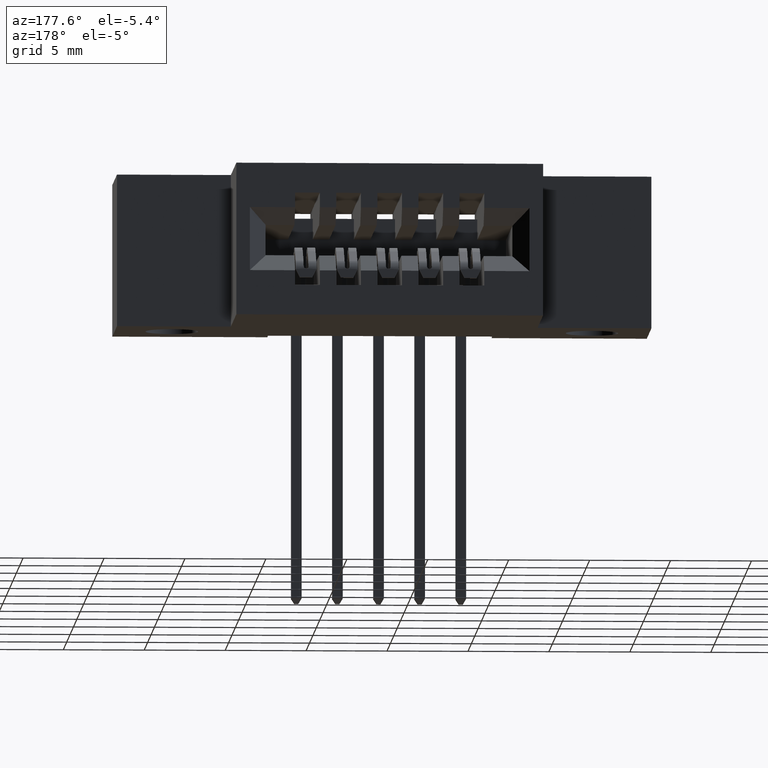
[diagram: clean part render]
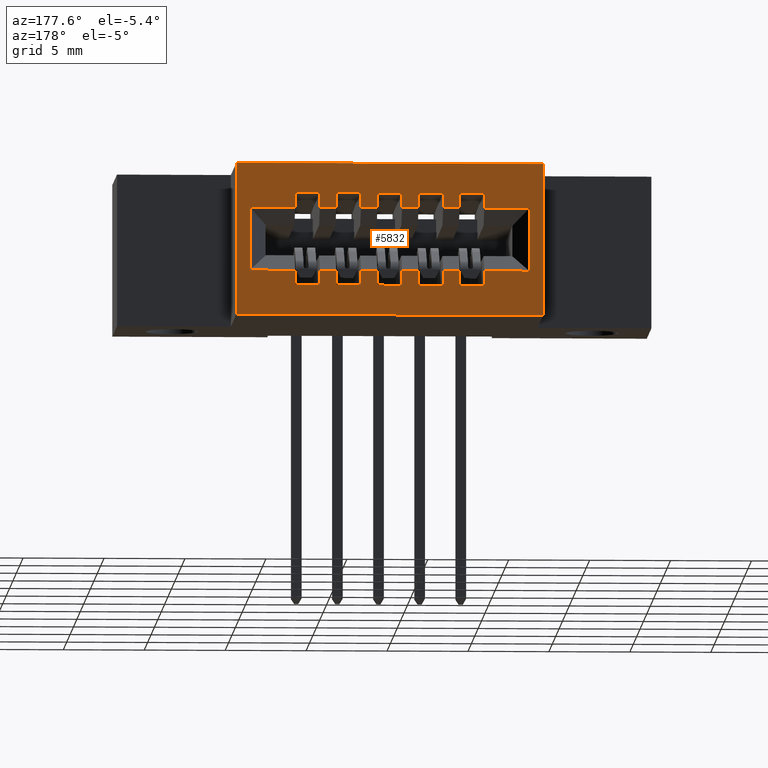
[diagram: same view with one face highlighted and labeled with its STEP entity id]
A machine part, auxiliary view. The second image highlights one B-rep face of the part: STEP entity #5832.
In plain terms, the highlighted planar face has unit normal (0, -1, 0).
Its self-contained STEP definition (entity closure, byte-faithful):
#21 = ORIENTED_EDGE ( 'NONE', *, *, #331, .F. ) ;
#40 = ORIENTED_EDGE ( 'NONE', *, *, #383, .F. ) ;
#51 = ORIENTED_EDGE ( 'NONE', *, *, #430, .T. ) ;
#60 = LINE ( 'NONE', #5046, #6360 ) ;
#67 = VECTOR ( 'NONE', #3979, 39.37007874015748100 ) ;
#95 = ORIENTED_EDGE ( 'NONE', *, *, #431, .F. ) ;
#109 = VERTEX_POINT ( 'NONE', #3412 ) ;
#178 = VECTOR ( 'NONE', #3903, 39.37007874015748100 ) ;
#192 = ORIENTED_EDGE ( 'NONE', *, *, #691, .T. ) ;
#225 = DIRECTION ( 'NONE',  ( 1.000000000000000000, -0.0000000000000000000, -0.0000000000000000000 ) ) ;
#247 = ORIENTED_EDGE ( 'NONE', *, *, #447, .T. ) ;
#292 = ORIENTED_EDGE ( 'NONE', *, *, #798, .T. ) ;
#294 = DIRECTION ( 'NONE',  ( 1.000000000000000000, 0.0000000000000000000, 0.0000000000000000000 ) ) ;
#331 = EDGE_CURVE ( 'NONE', #6327, #5750, #3993, .T. ) ;
#334 = EDGE_CURVE ( 'NONE', #6327, #2104, #3547, .T. ) ;
#341 = EDGE_CURVE ( 'NONE', #3410, #2104, #5234, .T. ) ;
#345 = EDGE_CURVE ( 'NONE', #6586, #6472, #5049, .T. ) ;
#353 = EDGE_CURVE ( 'NONE', #6586, #2620, #1636, .T. ) ;
#354 = EDGE_CURVE ( 'NONE', #2620, #573, #6363, .T. ) ;
#359 = VECTOR ( 'NONE', #514, 39.37007874015748100 ) ;
#368 = EDGE_CURVE ( 'NONE', #4877, #573, #6537, .T. ) ;
#378 = DIRECTION ( 'NONE',  ( -0.0000000000000000000, -0.0000000000000000000, 1.000000000000000000 ) ) ;
#383 = EDGE_CURVE ( 'NONE', #3912, #4877, #2982, .T. ) ;
#385 = EDGE_CURVE ( 'NONE', #3912, #7454, #4658, .T. ) ;
#386 = EDGE_CURVE ( 'NONE', #7454, #7559, #7436, .T. ) ;
#397 = EDGE_CURVE ( 'NONE', #3461, #7559, #6017, .T. ) ;
#400 = EDGE_CURVE ( 'NONE', #1278, #3461, #5857, .T. ) ;
#411 = EDGE_CURVE ( 'NONE', #1278, #6331, #825, .T. ) ;
#413 = VERTEX_POINT ( 'NONE', #6044 ) ;
#430 = EDGE_CURVE ( 'NONE', #6331, #1967, #2784, .T. ) ;
#431 = EDGE_CURVE ( 'NONE', #2174, #1967, #5518, .T. ) ;
#443 = ORIENTED_EDGE ( 'NONE', *, *, #613, .F. ) ;
#444 = EDGE_CURVE ( 'NONE', #6382, #2174, #4095, .T. ) ;
#447 = EDGE_CURVE ( 'NONE', #6382, #3321, #6785, .T. ) ;
#455 = CARTESIAN_POINT ( 'NONE',  ( 0.0000000000000000000, 0.5899999999999999700, -0.3700000000000000000 ) ) ;
#456 = ORIENTED_EDGE ( 'NONE', *, *, #598, .T. ) ;
#464 = EDGE_CURVE ( 'NONE', #3321, #6824, #6609, .T. ) ;
#470 = EDGE_CURVE ( 'NONE', #3340, #6824, #5127, .T. ) ;
#481 = EDGE_CURVE ( 'NONE', #3495, #3340, #3456, .T. ) ;
#498 = EDGE_CURVE ( 'NONE', #3495, #4984, #3645, .T. ) ;
#510 = EDGE_CURVE ( 'NONE', #4984, #109, #1544, .T. ) ;
#514 = DIRECTION ( 'NONE',  ( 1.000000000000000000, -0.0000000000000000000, -0.0000000000000000000 ) ) ;
#527 = EDGE_CURVE ( 'NONE', #109, #1372, #1338, .T. ) ;
#544 = EDGE_CURVE ( 'NONE', #1717, #1372, #2876, .T. ) ;
#558 = EDGE_CURVE ( 'NONE', #1717, #4057, #1127, .T. ) ;
#567 = CARTESIAN_POINT ( 'NONE',  ( 0.4799999999999999800, 0.5899999999999999700, -0.2220000000000001100 ) ) ;
#569 = EDGE_CURVE ( 'NONE', #4057, #989, #7355, .T. ) ;
#573 = VERTEX_POINT ( 'NONE', #3228 ) ;
#598 = EDGE_CURVE ( 'NONE', #989, #7226, #4381, .T. ) ;
#613 = EDGE_CURVE ( 'NONE', #7543, #7226, #2665, .T. ) ;
#629 = EDGE_CURVE ( 'NONE', #7543, #7073, #5774, .T. ) ;
#632 = EDGE_CURVE ( 'NONE', #7073, #4512, #931, .T. ) ;
#642 = EDGE_CURVE ( 'NONE', #4512, #5342, #2468, .T. ) ;
#644 = EDGE_CURVE ( 'NONE', #2533, #5342, #2244, .T. ) ;
#665 = EDGE_CURVE ( 'NONE', #2533, #2196, #3750, .T. ) ;
#672 = DIRECTION ( 'NONE',  ( -0.0000000000000000000, -0.0000000000000000000, 1.000000000000000000 ) ) ;
#681 = ORIENTED_EDGE ( 'NONE', *, *, #558, .T. ) ;
#691 = EDGE_CURVE ( 'NONE', #2196, #1726, #7024, .T. ) ;
#695 = ORIENTED_EDGE ( 'NONE', *, *, #498, .T. ) ;
#704 = EDGE_CURVE ( 'NONE', #1726, #4867, #3542, .T. ) ;
#710 = CARTESIAN_POINT ( 'NONE',  ( 0.6200000000000000000, 0.5899999999999999700, -0.07250000000000000900 ) ) ;
#711 = DIRECTION ( 'NONE',  ( 0.0000000000000000000, -0.0000000000000000000, -1.000000000000000000 ) ) ;
#717 = VECTOR ( 'NONE', #225, 39.37007874015748100 ) ;
#722 = LINE ( 'NONE', #7228, #7025 ) ;
#725 = VERTEX_POINT ( 'NONE', #6556 ) ;
#736 = EDGE_CURVE ( 'NONE', #5079, #4867, #3354, .T. ) ;
#745 = EDGE_CURVE ( 'NONE', #5079, #413, #60, .T. ) ;
#755 = EDGE_CURVE ( 'NONE', #413, #2281, #1438, .T. ) ;
#760 = CARTESIAN_POINT ( 'NONE',  ( 0.8799999999999998900, 0.5899999999999999700, -0.07250000000000003700 ) ) ;
#765 = EDGE_CURVE ( 'NONE', #2281, #7615, #4653, .T. ) ;
#783 = EDGE_CURVE ( 'NONE', #3511, #7615, #1847, .T. ) ;
#798 = EDGE_CURVE ( 'NONE', #3511, #4340, #6010, .T. ) ;
#800 = EDGE_CURVE ( 'NONE', #4340, #6915, #2775, .T. ) ;
#813 = EDGE_CURVE ( 'NONE', #6915, #6917, #4288, .T. ) ;
#818 = VECTOR ( 'NONE', #6260, 39.37007874015748100 ) ;
#822 = EDGE_CURVE ( 'NONE', #6917, #7404, #7271, .T. ) ;
#825 = LINE ( 'NONE', #3922, #1037 ) ;
#931 = LINE ( 'NONE', #7379, #3987 ) ;
#989 = VERTEX_POINT ( 'NONE', #2560 ) ;
#1027 = VECTOR ( 'NONE', #7766, 39.37007874015748100 ) ;
#1037 = VECTOR ( 'NONE', #2375, 39.37007874015748100 ) ;
#1092 = CARTESIAN_POINT ( 'NONE',  ( 0.4799999999999999800, 0.5899999999999999700, -0.1479999999999999100 ) ) ;
#1127 = LINE ( 'NONE', #2333, #5925 ) ;
#1162 = DIRECTION ( 'NONE',  ( -1.000000000000000000, 0.0000000000000000000, 0.0000000000000000000 ) ) ;
#1222 = VECTOR ( 'NONE', #5951, 39.37007874015748100 ) ;
#1229 = VECTOR ( 'NONE', #5531, 39.37007874015748100 ) ;
#1265 = DIRECTION ( 'NONE',  ( 1.000000000000000000, -0.0000000000000000000, -0.0000000000000000000 ) ) ;
#1278 = VERTEX_POINT ( 'NONE', #2370 ) ;
#1338 = LINE ( 'NONE', #5644, #7506 ) ;
#1366 = ORIENTED_EDGE ( 'NONE', *, *, #813, .T. ) ;
#1372 = VERTEX_POINT ( 'NONE', #7300 ) ;
#1434 = DIRECTION ( 'NONE',  ( 1.000000000000000000, 0.0000000000000000000, 0.0000000000000000000 ) ) ;
#1438 = LINE ( 'NONE', #4824, #4852 ) ;
#1442 = CARTESIAN_POINT ( 'NONE',  ( 0.4200000000000000400, 0.5899999999999999700, -0.1479999999999999100 ) ) ;
#1449 = VECTOR ( 'NONE', #5359, 39.37007874015748100 ) ;
#1464 = CARTESIAN_POINT ( 'NONE',  ( 1.022999999999999500, 0.5899999999999999700, -0.3700000000000000000 ) ) ;
#1465 = DIRECTION ( 'NONE',  ( -0.0000000000000000000, -0.0000000000000000000, 1.000000000000000000 ) ) ;
#1540 = DIRECTION ( 'NONE',  ( 0.0000000000000000000, 0.0000000000000000000, 1.000000000000000000 ) ) ;
#1544 = LINE ( 'NONE', #7755, #4757 ) ;
#1552 = CARTESIAN_POINT ( 'NONE',  ( 0.8199999999999998400, 0.5899999999999999700, -0.2975000000000001000 ) ) ;
#1581 = ORIENTED_EDGE ( 'NONE', *, *, #665, .T. ) ;
#1598 = EDGE_LOOP ( 'NONE', ( #5980, #21, #6835, #2847 ) ) ;
#1636 = LINE ( 'NONE', #7705, #4859 ) ;
#1652 = DIRECTION ( 'NONE',  ( 0.0000000000000000000, 0.0000000000000000000, 1.000000000000000000 ) ) ;
#1656 = ORIENTED_EDGE ( 'NONE', *, *, #444, .F. ) ;
#1669 = DIRECTION ( 'NONE',  ( -0.0000000000000000000, -0.0000000000000000000, 1.000000000000000000 ) ) ;
#1675 = DIRECTION ( 'NONE',  ( 1.000000000000000000, -0.0000000000000000000, -0.0000000000000000000 ) ) ;
#1684 = ORIENTED_EDGE ( 'NONE', *, *, #569, .T. ) ;
#1703 = CARTESIAN_POINT ( 'NONE',  ( 0.0000000000000000000, 0.5899999999999999700, -0.1079999999999997800 ) ) ;
#1717 = VERTEX_POINT ( 'NONE', #6261 ) ;
#1726 = VERTEX_POINT ( 'NONE', #6573 ) ;
#1740 = VECTOR ( 'NONE', #6499, 39.37007874015748100 ) ;
#1823 = ORIENTED_EDGE ( 'NONE', *, *, #470, .F. ) ;
#1847 = LINE ( 'NONE', #6391, #1222 ) ;
#1853 = VECTOR ( 'NONE', #4981, 39.37007874015748100 ) ;
#1921 = CARTESIAN_POINT ( 'NONE',  ( 0.8799999999999998900, 0.5899999999999999700, -0.2975000000000001000 ) ) ;
#1925 = CARTESIAN_POINT ( 'NONE',  ( 0.5800000000000000700, 0.5899999999999999700, -0.1079999999999997800 ) ) ;
#1946 = VECTOR ( 'NONE', #2839, 39.37007874015748100 ) ;
#1962 = CARTESIAN_POINT ( 'NONE',  ( 0.6200000000000000000, 0.5899999999999999700, -0.07250000000000000900 ) ) ;
#1967 = VERTEX_POINT ( 'NONE', #7387 ) ;
#2047 = VECTOR ( 'NONE', #3770, 39.37007874015748100 ) ;
#2086 = CARTESIAN_POINT ( 'NONE',  ( 1.022999999999999500, 0.5899999999999999700, -1.083200093845833700E-016 ) ) ;
#2104 = VERTEX_POINT ( 'NONE', #6328 ) ;
#2159 = CARTESIAN_POINT ( 'NONE',  ( 0.4799999999999999800, 0.5899999999999999700, -0.2975000000000000400 ) ) ;
#2174 = VERTEX_POINT ( 'NONE', #6280 ) ;
#2178 = ORIENTED_EDGE ( 'NONE', *, *, #2260, .T. ) ;
#2196 = VERTEX_POINT ( 'NONE', #7241 ) ;
#2244 = LINE ( 'NONE', #7607, #6863 ) ;
#2260 = EDGE_CURVE ( 'NONE', #7404, #725, #2984, .T. ) ;
#2279 = CARTESIAN_POINT ( 'NONE',  ( 0.8799999999999998900, 0.5899999999999999700, -0.1479999999999999400 ) ) ;
#2281 = VERTEX_POINT ( 'NONE', #4005 ) ;
#2299 = EDGE_CURVE ( 'NONE', #725, #3566, #2789, .T. ) ;
#2304 = CARTESIAN_POINT ( 'NONE',  ( 0.4200000000000000400, 0.5899999999999999700, -0.07249999999999998100 ) ) ;
#2333 = CARTESIAN_POINT ( 'NONE',  ( 0.4200000000000000400, 0.5899999999999999700, -0.2975000000000000400 ) ) ;
#2350 = VECTOR ( 'NONE', #7185, 39.37007874015748100 ) ;
#2370 = CARTESIAN_POINT ( 'NONE',  ( 0.6200000000000000000, 0.5899999999999999700, -0.1079999999999997800 ) ) ;
#2375 = DIRECTION ( 'NONE',  ( -1.000000000000000000, 0.0000000000000000000, 0.0000000000000000000 ) ) ;
#2377 = ORIENTED_EDGE ( 'NONE', *, *, #745, .T. ) ;
#2391 = EDGE_CURVE ( 'NONE', #6472, #3566, #6787, .T. ) ;
#2468 = LINE ( 'NONE', #5455, #5609 ) ;
#2491 = CARTESIAN_POINT ( 'NONE',  ( 0.4200000000000000400, 0.5899999999999999700, -0.07249999999999998100 ) ) ;
#2533 = VERTEX_POINT ( 'NONE', #6916 ) ;
#2543 = ORIENTED_EDGE ( 'NONE', *, *, #544, .F. ) ;
#2559 = PLANE ( 'NONE',  #2596 ) ;
#2560 = CARTESIAN_POINT ( 'NONE',  ( 0.4799999999999999800, 0.5899999999999999700, -0.2620000000000005700 ) ) ;
#2563 = VECTOR ( 'NONE', #3995, 39.37007874015748100 ) ;
#2596 = AXIS2_PLACEMENT_3D ( 'NONE', #3019, #3111, #711 ) ;
#2620 = VERTEX_POINT ( 'NONE', #7180 ) ;
#2665 = LINE ( 'NONE', #7603, #4209 ) ;
#2775 = LINE ( 'NONE', #5305, #5851 ) ;
#2784 = LINE ( 'NONE', #2807, #3866 ) ;
#2788 = CARTESIAN_POINT ( 'NONE',  ( 0.8199999999999998400, 0.5899999999999999700, -0.1479999999999999400 ) ) ;
#2789 = LINE ( 'NONE', #2279, #2563 ) ;
#2797 = CARTESIAN_POINT ( 'NONE',  ( 0.8199999999999998400, 0.5899999999999999700, -0.2975000000000001000 ) ) ;
#2807 = CARTESIAN_POINT ( 'NONE',  ( 0.5800000000000000700, 0.5899999999999999700, -0.1479999999999999100 ) ) ;
#2839 = DIRECTION ( 'NONE',  ( -1.000000000000000000, 0.0000000000000000000, 0.0000000000000000000 ) ) ;
#2846 = CARTESIAN_POINT ( 'NONE',  ( 0.7199999999999998600, 0.5899999999999999700, -0.1079999999999997800 ) ) ;
#2847 = ORIENTED_EDGE ( 'NONE', *, *, #341, .F. ) ;
#2858 = ORIENTED_EDGE ( 'NONE', *, *, #354, .T. ) ;
#2876 = LINE ( 'NONE', #7776, #3079 ) ;
#2971 = ORIENTED_EDGE ( 'NONE', *, *, #464, .T. ) ;
#2975 = VECTOR ( 'NONE', #7238, 39.37007874015748100 ) ;
#2977 = CARTESIAN_POINT ( 'NONE',  ( 0.2770000000000000200, 0.5899999999999999700, 0.0000000000000000000 ) ) ;
#2982 = LINE ( 'NONE', #5504, #1229 ) ;
#2984 = LINE ( 'NONE', #5461, #6019 ) ;
#3019 = CARTESIAN_POINT ( 'NONE',  ( 0.0000000000000000000, 0.5899999999999999700, -0.3700000000000000000 ) ) ;
#3079 = VECTOR ( 'NONE', #1465, 39.37007874015748100 ) ;
#3111 = DIRECTION ( 'NONE',  ( 0.0000000000000000000, -1.000000000000000000, 0.0000000000000000000 ) ) ;
#3122 = ORIENTED_EDGE ( 'NONE', *, *, #765, .T. ) ;
#3148 = ORIENTED_EDGE ( 'NONE', *, *, #629, .T. ) ;
#3179 = VECTOR ( 'NONE', #7620, 39.37007874015748100 ) ;
#3188 = ORIENTED_EDGE ( 'NONE', *, *, #481, .F. ) ;
#3204 = EDGE_CURVE ( 'NONE', #3410, #5750, #722, .T. ) ;
#3228 = CARTESIAN_POINT ( 'NONE',  ( 0.7799999999999999200, 0.5899999999999999700, -0.07250000000000002300 ) ) ;
#3321 = VERTEX_POINT ( 'NONE', #4666 ) ;
#3340 = VERTEX_POINT ( 'NONE', #2491 ) ;
#3346 = ORIENTED_EDGE ( 'NONE', *, *, #510, .T. ) ;
#3354 = LINE ( 'NONE', #6240, #6528 ) ;
#3359 = CARTESIAN_POINT ( 'NONE',  ( 0.8799999999999998900, 0.5899999999999999700, -0.2620000000000005700 ) ) ;
#3364 = VECTOR ( 'NONE', #4819, 39.37007874015748100 ) ;
#3379 = ORIENTED_EDGE ( 'NONE', *, *, #800, .T. ) ;
#3410 = VERTEX_POINT ( 'NONE', #2977 ) ;
#3412 = CARTESIAN_POINT ( 'NONE',  ( 0.3099999999999995500, 0.5899999999999999700, -0.2620000000000005700 ) ) ;
#3456 = LINE ( 'NONE', #1442, #6446 ) ;
#3461 = VERTEX_POINT ( 'NONE', #710 ) ;
#3490 = ORIENTED_EDGE ( 'NONE', *, *, #642, .T. ) ;
#3495 = VERTEX_POINT ( 'NONE', #5763 ) ;
#3511 = VERTEX_POINT ( 'NONE', #2797 ) ;
#3542 = LINE ( 'NONE', #5927, #5406 ) ;
#3547 = LINE ( 'NONE', #455, #67 ) ;
#3566 = VERTEX_POINT ( 'NONE', #760 ) ;
#3599 = DIRECTION ( 'NONE',  ( -0.0000000000000000000, -0.0000000000000000000, 1.000000000000000000 ) ) ;
#3645 = LINE ( 'NONE', #1703, #7641 ) ;
#3686 = CARTESIAN_POINT ( 'NONE',  ( 1.022999999999999500, 0.5899999999999999700, -0.3699999999999991100 ) ) ;
#3722 = CARTESIAN_POINT ( 'NONE',  ( 0.6200000000000000000, 0.5899999999999999700, -0.1479999999999999400 ) ) ;
#3748 = ORIENTED_EDGE ( 'NONE', *, *, #632, .T. ) ;
#3750 = LINE ( 'NONE', #4774, #2047 ) ;
#3770 = DIRECTION ( 'NONE',  ( 1.000000000000000000, -0.0000000000000000000, -0.0000000000000000000 ) ) ;
#3789 = CARTESIAN_POINT ( 'NONE',  ( 0.6799999999999999400, 0.5899999999999999700, -0.1079999999999997800 ) ) ;
#3801 = DIRECTION ( 'NONE',  ( 1.000000000000000000, -0.0000000000000000000, -0.0000000000000000000 ) ) ;
#3866 = VECTOR ( 'NONE', #7532, 39.37007874015748100 ) ;
#3903 = DIRECTION ( 'NONE',  ( 0.0000000000000000000, 0.0000000000000000000, 1.000000000000000000 ) ) ;
#3910 = ORIENTED_EDGE ( 'NONE', *, *, #644, .F. ) ;
#3912 = VERTEX_POINT ( 'NONE', #2846 ) ;
#3922 = CARTESIAN_POINT ( 'NONE',  ( 0.0000000000000000000, 0.5899999999999999700, -0.1079999999999997800 ) ) ;
#3979 = DIRECTION ( 'NONE',  ( -1.000000000000000000, -0.0000000000000000000, -0.0000000000000000000 ) ) ;
#3987 = VECTOR ( 'NONE', #3599, 39.37007874015748100 ) ;
#3992 = ORIENTED_EDGE ( 'NONE', *, *, #385, .T. ) ;
#3993 = LINE ( 'NONE', #3686, #1853 ) ;
#3995 = DIRECTION ( 'NONE',  ( 0.0000000000000000000, 0.0000000000000000000, 1.000000000000000000 ) ) ;
#4005 = CARTESIAN_POINT ( 'NONE',  ( 0.7799999999999999200, 0.5899999999999999700, -0.2620000000000005700 ) ) ;
#4012 = CARTESIAN_POINT ( 'NONE',  ( 0.5200000000000000200, 0.5899999999999999700, -0.2620000000000005700 ) ) ;
#4024 = ORIENTED_EDGE ( 'NONE', *, *, #2391, .F. ) ;
#4033 = ORIENTED_EDGE ( 'NONE', *, *, #527, .T. ) ;
#4057 = VERTEX_POINT ( 'NONE', #2159 ) ;
#4095 = LINE ( 'NONE', #7033, #5319 ) ;
#4176 = CARTESIAN_POINT ( 'NONE',  ( 0.6200000000000000000, 0.5899999999999999700, -0.2620000000000005700 ) ) ;
#4209 = VECTOR ( 'NONE', #6188, 39.37007874015748100 ) ;
#4229 = ORIENTED_EDGE ( 'NONE', *, *, #822, .T. ) ;
#4233 = CARTESIAN_POINT ( 'NONE',  ( 0.7199999999999998600, 0.5899999999999999700, -0.07250000000000002300 ) ) ;
#4239 = CARTESIAN_POINT ( 'NONE',  ( 0.7799999999999999200, 0.5899999999999999700, -0.1479999999999999400 ) ) ;
#4243 = CARTESIAN_POINT ( 'NONE',  ( 0.5200000000000000200, 0.5899999999999999700, -0.07249999999999999500 ) ) ;
#4288 = LINE ( 'NONE', #6734, #818 ) ;
#4296 = VECTOR ( 'NONE', #1652, 39.37007874015748100 ) ;
#4340 = VERTEX_POINT ( 'NONE', #1921 ) ;
#4344 = ORIENTED_EDGE ( 'NONE', *, *, #386, .T. ) ;
#4368 = ORIENTED_EDGE ( 'NONE', *, *, #397, .F. ) ;
#4381 = LINE ( 'NONE', #6278, #7197 ) ;
#4430 = DIRECTION ( 'NONE',  ( -0.0000000000000000000, -0.0000000000000000000, 1.000000000000000000 ) ) ;
#4481 = VECTOR ( 'NONE', #6893, 39.37007874015748100 ) ;
#4497 = ORIENTED_EDGE ( 'NONE', *, *, #755, .T. ) ;
#4512 = VERTEX_POINT ( 'NONE', #6204 ) ;
#4599 = ORIENTED_EDGE ( 'NONE', *, *, #400, .F. ) ;
#4638 = ORIENTED_EDGE ( 'NONE', *, *, #353, .T. ) ;
#4653 = LINE ( 'NONE', #6007, #2975 ) ;
#4658 = LINE ( 'NONE', #4734, #3179 ) ;
#4666 = CARTESIAN_POINT ( 'NONE',  ( 0.4799999999999999800, 0.5899999999999999700, -0.1079999999999997800 ) ) ;
#4734 = CARTESIAN_POINT ( 'NONE',  ( 0.0000000000000000000, 0.5899999999999999700, -0.1079999999999997800 ) ) ;
#4757 = VECTOR ( 'NONE', #7137, 39.37007874015748100 ) ;
#4774 = CARTESIAN_POINT ( 'NONE',  ( 0.6200000000000000000, 0.5899999999999999700, -0.2975000000000001000 ) ) ;
#4819 = DIRECTION ( 'NONE',  ( -0.0000000000000000000, -0.0000000000000000000, -1.000000000000000000 ) ) ;
#4824 = CARTESIAN_POINT ( 'NONE',  ( 0.7799999999999999200, 0.5899999999999999700, -0.2220000000000001400 ) ) ;
#4852 = VECTOR ( 'NONE', #672, 39.37007874015748100 ) ;
#4859 = VECTOR ( 'NONE', #7586, 39.37007874015748100 ) ;
#4867 = VERTEX_POINT ( 'NONE', #4924 ) ;
#4877 = VERTEX_POINT ( 'NONE', #7098 ) ;
#4924 = CARTESIAN_POINT ( 'NONE',  ( 0.7199999999999998600, 0.5899999999999999700, -0.2620000000000005700 ) ) ;
#4966 = VECTOR ( 'NONE', #5537, 39.37007874015748100 ) ;
#4977 = ORIENTED_EDGE ( 'NONE', *, *, #704, .T. ) ;
#4981 = DIRECTION ( 'NONE',  ( 0.0000000000000000000, 0.0000000000000000000, 1.000000000000000000 ) ) ;
#4984 = VERTEX_POINT ( 'NONE', #6793 ) ;
#5008 = CARTESIAN_POINT ( 'NONE',  ( 0.8199999999999998400, 0.5899999999999999700, -0.07250000000000003700 ) ) ;
#5046 = CARTESIAN_POINT ( 'NONE',  ( 0.7199999999999998600, 0.5899999999999999700, -0.2975000000000001000 ) ) ;
#5049 = LINE ( 'NONE', #2788, #7714 ) ;
#5079 = VERTEX_POINT ( 'NONE', #6014 ) ;
#5127 = LINE ( 'NONE', #2304, #1740 ) ;
#5173 = DIRECTION ( 'NONE',  ( 1.000000000000000000, -0.0000000000000000000, -0.0000000000000000000 ) ) ;
#5234 = LINE ( 'NONE', #6730, #3364 ) ;
#5268 = CARTESIAN_POINT ( 'NONE',  ( 0.8199999999999998400, 0.5899999999999999700, -0.2620000000000005700 ) ) ;
#5305 = CARTESIAN_POINT ( 'NONE',  ( 0.8799999999999998900, 0.5899999999999999700, -0.2220000000000002000 ) ) ;
#5319 = VECTOR ( 'NONE', #7110, 39.37007874015748100 ) ;
#5336 = ORIENTED_EDGE ( 'NONE', *, *, #736, .F. ) ;
#5342 = VERTEX_POINT ( 'NONE', #4176 ) ;
#5359 = DIRECTION ( 'NONE',  ( 0.0000000000000000000, 0.0000000000000000000, 1.000000000000000000 ) ) ;
#5406 = VECTOR ( 'NONE', #7588, 39.37007874015748100 ) ;
#5442 = CARTESIAN_POINT ( 'NONE',  ( 0.6799999999999999400, 0.5899999999999999700, -0.07250000000000000900 ) ) ;
#5455 = CARTESIAN_POINT ( 'NONE',  ( 0.0000000000000000000, 0.5899999999999999700, -0.2620000000000005700 ) ) ;
#5461 = CARTESIAN_POINT ( 'NONE',  ( 0.0000000000000000000, 0.5899999999999999700, -0.1079999999999997800 ) ) ;
#5504 = CARTESIAN_POINT ( 'NONE',  ( 0.7199999999999998600, 0.5899999999999999700, -0.1479999999999999400 ) ) ;
#5518 = LINE ( 'NONE', #4243, #359 ) ;
#5531 = DIRECTION ( 'NONE',  ( 0.0000000000000000000, 0.0000000000000000000, 1.000000000000000000 ) ) ;
#5537 = DIRECTION ( 'NONE',  ( -0.0000000000000000000, -0.0000000000000000000, 1.000000000000000000 ) ) ;
#5609 = VECTOR ( 'NONE', #7419, 39.37007874015748100 ) ;
#5644 = CARTESIAN_POINT ( 'NONE',  ( 0.0000000000000000000, 0.5899999999999999700, -0.2620000000000005700 ) ) ;
#5750 = VERTEX_POINT ( 'NONE', #2086 ) ;
#5757 = CARTESIAN_POINT ( 'NONE',  ( 0.4799999999999999800, 0.5899999999999999700, -0.07249999999999998100 ) ) ;
#5763 = CARTESIAN_POINT ( 'NONE',  ( 0.4200000000000000400, 0.5899999999999999700, -0.1079999999999997800 ) ) ;
#5774 = LINE ( 'NONE', #7449, #717 ) ;
#5832 = ADVANCED_FACE ( 'NONE', ( #7316, #7157 ), #2559, .F. ) ;
#5834 = CARTESIAN_POINT ( 'NONE',  ( 0.5200000000000000200, 0.5899999999999999700, -0.2975000000000000400 ) ) ;
#5835 = ORIENTED_EDGE ( 'NONE', *, *, #345, .F. ) ;
#5851 = VECTOR ( 'NONE', #378, 39.37007874015748100 ) ;
#5857 = LINE ( 'NONE', #3722, #4296 ) ;
#5868 = DIRECTION ( 'NONE',  ( -0.0000000000000000000, -0.0000000000000000000, 1.000000000000000000 ) ) ;
#5910 = EDGE_LOOP ( 'NONE', ( #5835, #4638, #2858, #6694, #40, #3992, #4344, #4368, #4599, #7084, #51, #95, #1656, #247, #2971, #1823, #3188, #695, #3346, #4033, #2543, #681, #1684, #456, #443, #3148, #3748, #3490, #3910, #1581, #192, #4977, #5336, #2377, #4497, #3122, #7723, #292, #3379, #1366, #4229, #2178, #6808, #4024 ) ) ;
#5925 = VECTOR ( 'NONE', #3801, 39.37007874015748100 ) ;
#5927 = CARTESIAN_POINT ( 'NONE',  ( 0.0000000000000000000, 0.5899999999999999700, -0.2620000000000005700 ) ) ;
#5932 = DIRECTION ( 'NONE',  ( 1.000000000000000000, 0.0000000000000000000, 0.0000000000000000000 ) ) ;
#5951 = DIRECTION ( 'NONE',  ( -0.0000000000000000000, -0.0000000000000000000, 1.000000000000000000 ) ) ;
#5980 = ORIENTED_EDGE ( 'NONE', *, *, #3204, .T. ) ;
#6007 = CARTESIAN_POINT ( 'NONE',  ( 0.0000000000000000000, 0.5899999999999999700, -0.2620000000000005700 ) ) ;
#6010 = LINE ( 'NONE', #1552, #1027 ) ;
#6014 = CARTESIAN_POINT ( 'NONE',  ( 0.7199999999999998600, 0.5899999999999999700, -0.2975000000000001000 ) ) ;
#6017 = LINE ( 'NONE', #1962, #7580 ) ;
#6019 = VECTOR ( 'NONE', #6626, 39.37007874015748100 ) ;
#6044 = CARTESIAN_POINT ( 'NONE',  ( 0.7799999999999999200, 0.5899999999999999700, -0.2975000000000001000 ) ) ;
#6145 = CARTESIAN_POINT ( 'NONE',  ( 0.0000000000000000000, 0.5899999999999999700, -0.1079999999999997800 ) ) ;
#6181 = CARTESIAN_POINT ( 'NONE',  ( 0.8199999999999998400, 0.5899999999999999700, -0.07250000000000003700 ) ) ;
#6188 = DIRECTION ( 'NONE',  ( -0.0000000000000000000, -0.0000000000000000000, 1.000000000000000000 ) ) ;
#6196 = VECTOR ( 'NONE', #1675, 39.37007874015748100 ) ;
#6198 = DIRECTION ( 'NONE',  ( 0.0000000000000000000, 0.0000000000000000000, 1.000000000000000000 ) ) ;
#6204 = CARTESIAN_POINT ( 'NONE',  ( 0.5800000000000000700, 0.5899999999999999700, -0.2620000000000005700 ) ) ;
#6240 = CARTESIAN_POINT ( 'NONE',  ( 0.7199999999999998600, 0.5899999999999999700, -0.2220000000000001400 ) ) ;
#6260 = DIRECTION ( 'NONE',  ( 1.000000000000000000, 0.0000000000000000000, 0.0000000000000000000 ) ) ;
#6261 = CARTESIAN_POINT ( 'NONE',  ( 0.4200000000000000400, 0.5899999999999999700, -0.2975000000000000400 ) ) ;
#6278 = CARTESIAN_POINT ( 'NONE',  ( 0.0000000000000000000, 0.5899999999999999700, -0.2620000000000005700 ) ) ;
#6280 = CARTESIAN_POINT ( 'NONE',  ( 0.5200000000000000200, 0.5899999999999999700, -0.07249999999999999500 ) ) ;
#6327 = VERTEX_POINT ( 'NONE', #1464 ) ;
#6328 = CARTESIAN_POINT ( 'NONE',  ( 0.2770000000000000200, 0.5899999999999999700, -0.3700000000000000000 ) ) ;
#6331 = VERTEX_POINT ( 'NONE', #1925 ) ;
#6360 = VECTOR ( 'NONE', #5173, 39.37007874015748100 ) ;
#6363 = LINE ( 'NONE', #4239, #1449 ) ;
#6382 = VERTEX_POINT ( 'NONE', #7697 ) ;
#6391 = CARTESIAN_POINT ( 'NONE',  ( 0.8199999999999998400, 0.5899999999999999700, -0.2220000000000002000 ) ) ;
#6404 = CARTESIAN_POINT ( 'NONE',  ( 0.6799999999999999400, 0.5899999999999999700, -0.1479999999999999400 ) ) ;
#6446 = VECTOR ( 'NONE', #1540, 39.37007874015748100 ) ;
#6472 = VERTEX_POINT ( 'NONE', #6181 ) ;
#6499 = DIRECTION ( 'NONE',  ( 1.000000000000000000, -0.0000000000000000000, -0.0000000000000000000 ) ) ;
#6528 = VECTOR ( 'NONE', #4430, 39.37007874015748100 ) ;
#6537 = LINE ( 'NONE', #4233, #6196 ) ;
#6556 = CARTESIAN_POINT ( 'NONE',  ( 0.8799999999999998900, 0.5899999999999999700, -0.1079999999999997800 ) ) ;
#6573 = CARTESIAN_POINT ( 'NONE',  ( 0.6799999999999999400, 0.5899999999999999700, -0.2620000000000005700 ) ) ;
#6586 = VERTEX_POINT ( 'NONE', #7323 ) ;
#6609 = LINE ( 'NONE', #1092, #178 ) ;
#6610 = VECTOR ( 'NONE', #1265, 39.37007874015748100 ) ;
#6626 = DIRECTION ( 'NONE',  ( -1.000000000000000000, 0.0000000000000000000, 0.0000000000000000000 ) ) ;
#6693 = VECTOR ( 'NONE', #5868, 39.37007874015748100 ) ;
#6694 = ORIENTED_EDGE ( 'NONE', *, *, #368, .F. ) ;
#6730 = CARTESIAN_POINT ( 'NONE',  ( 0.2770000000000000200, 0.5899999999999999700, -0.3700000000000000000 ) ) ;
#6734 = CARTESIAN_POINT ( 'NONE',  ( 0.0000000000000000000, 0.5899999999999999700, -0.2620000000000005700 ) ) ;
#6752 = CARTESIAN_POINT ( 'NONE',  ( 0.9900000000000008800, 0.5899999999999999700, -0.1079999999999997800 ) ) ;
#6757 = CARTESIAN_POINT ( 'NONE',  ( 0.6799999999999999400, 0.5899999999999999700, -0.2220000000000001400 ) ) ;
#6785 = LINE ( 'NONE', #6145, #1946 ) ;
#6787 = LINE ( 'NONE', #5008, #6610 ) ;
#6793 = CARTESIAN_POINT ( 'NONE',  ( 0.3099999999999995500, 0.5899999999999999700, -0.1079999999999997800 ) ) ;
#6808 = ORIENTED_EDGE ( 'NONE', *, *, #2299, .T. ) ;
#6820 = DIRECTION ( 'NONE',  ( 1.000000000000000000, -0.0000000000000000000, -0.0000000000000000000 ) ) ;
#6824 = VERTEX_POINT ( 'NONE', #5757 ) ;
#6835 = ORIENTED_EDGE ( 'NONE', *, *, #334, .T. ) ;
#6863 = VECTOR ( 'NONE', #1669, 39.37007874015748100 ) ;
#6893 = DIRECTION ( 'NONE',  ( 0.0000000000000000000, 0.0000000000000000000, 1.000000000000000000 ) ) ;
#6915 = VERTEX_POINT ( 'NONE', #3359 ) ;
#6916 = CARTESIAN_POINT ( 'NONE',  ( 0.6200000000000000000, 0.5899999999999999700, -0.2975000000000001000 ) ) ;
#6917 = VERTEX_POINT ( 'NONE', #7453 ) ;
#7024 = LINE ( 'NONE', #6757, #6693 ) ;
#7025 = VECTOR ( 'NONE', #5932, 39.37007874015748100 ) ;
#7033 = CARTESIAN_POINT ( 'NONE',  ( 0.5200000000000000200, 0.5899999999999999700, -0.1479999999999999100 ) ) ;
#7073 = VERTEX_POINT ( 'NONE', #7623 ) ;
#7084 = ORIENTED_EDGE ( 'NONE', *, *, #411, .T. ) ;
#7098 = CARTESIAN_POINT ( 'NONE',  ( 0.7199999999999998600, 0.5899999999999999700, -0.07250000000000002300 ) ) ;
#7110 = DIRECTION ( 'NONE',  ( 0.0000000000000000000, 0.0000000000000000000, 1.000000000000000000 ) ) ;
#7137 = DIRECTION ( 'NONE',  ( 0.0000000000000000000, 0.0000000000000000000, -1.000000000000000000 ) ) ;
#7157 = FACE_BOUND ( 'NONE', #5910, .T. ) ;
#7180 = CARTESIAN_POINT ( 'NONE',  ( 0.7799999999999999200, 0.5899999999999999700, -0.1079999999999997800 ) ) ;
#7185 = DIRECTION ( 'NONE',  ( 0.0000000000000000000, 0.0000000000000000000, 1.000000000000000000 ) ) ;
#7197 = VECTOR ( 'NONE', #1434, 39.37007874015748100 ) ;
#7223 = CARTESIAN_POINT ( 'NONE',  ( 0.9900000000000008800, 0.5899999999999999700, -0.3700000000000000000 ) ) ;
#7226 = VERTEX_POINT ( 'NONE', #4012 ) ;
#7228 = CARTESIAN_POINT ( 'NONE',  ( 0.0000000000000000000, 0.5899999999999999700, 0.0000000000000000000 ) ) ;
#7238 = DIRECTION ( 'NONE',  ( 1.000000000000000000, 0.0000000000000000000, 0.0000000000000000000 ) ) ;
#7241 = CARTESIAN_POINT ( 'NONE',  ( 0.6799999999999999400, 0.5899999999999999700, -0.2975000000000001000 ) ) ;
#7271 = LINE ( 'NONE', #7223, #2350 ) ;
#7300 = CARTESIAN_POINT ( 'NONE',  ( 0.4200000000000000400, 0.5899999999999999700, -0.2620000000000005700 ) ) ;
#7316 = FACE_OUTER_BOUND ( 'NONE', #1598, .T. ) ;
#7323 = CARTESIAN_POINT ( 'NONE',  ( 0.8199999999999998400, 0.5899999999999999700, -0.1079999999999997800 ) ) ;
#7355 = LINE ( 'NONE', #567, #4966 ) ;
#7379 = CARTESIAN_POINT ( 'NONE',  ( 0.5800000000000000700, 0.5899999999999999700, -0.2220000000000001100 ) ) ;
#7387 = CARTESIAN_POINT ( 'NONE',  ( 0.5800000000000000700, 0.5899999999999999700, -0.07249999999999999500 ) ) ;
#7404 = VERTEX_POINT ( 'NONE', #6752 ) ;
#7419 = DIRECTION ( 'NONE',  ( 1.000000000000000000, 0.0000000000000000000, 0.0000000000000000000 ) ) ;
#7436 = LINE ( 'NONE', #6404, #4481 ) ;
#7449 = CARTESIAN_POINT ( 'NONE',  ( 0.5200000000000000200, 0.5899999999999999700, -0.2975000000000000400 ) ) ;
#7453 = CARTESIAN_POINT ( 'NONE',  ( 0.9900000000000008800, 0.5899999999999999700, -0.2620000000000005700 ) ) ;
#7454 = VERTEX_POINT ( 'NONE', #3789 ) ;
#7506 = VECTOR ( 'NONE', #294, 39.37007874015748100 ) ;
#7532 = DIRECTION ( 'NONE',  ( 0.0000000000000000000, 0.0000000000000000000, 1.000000000000000000 ) ) ;
#7543 = VERTEX_POINT ( 'NONE', #5834 ) ;
#7559 = VERTEX_POINT ( 'NONE', #5442 ) ;
#7580 = VECTOR ( 'NONE', #6820, 39.37007874015748100 ) ;
#7586 = DIRECTION ( 'NONE',  ( -1.000000000000000000, 0.0000000000000000000, 0.0000000000000000000 ) ) ;
#7588 = DIRECTION ( 'NONE',  ( 1.000000000000000000, 0.0000000000000000000, 0.0000000000000000000 ) ) ;
#7603 = CARTESIAN_POINT ( 'NONE',  ( 0.5200000000000000200, 0.5899999999999999700, -0.2220000000000001100 ) ) ;
#7607 = CARTESIAN_POINT ( 'NONE',  ( 0.6200000000000000000, 0.5899999999999999700, -0.2220000000000001400 ) ) ;
#7615 = VERTEX_POINT ( 'NONE', #5268 ) ;
#7620 = DIRECTION ( 'NONE',  ( -1.000000000000000000, 0.0000000000000000000, 0.0000000000000000000 ) ) ;
#7623 = CARTESIAN_POINT ( 'NONE',  ( 0.5800000000000000700, 0.5899999999999999700, -0.2975000000000000400 ) ) ;
#7641 = VECTOR ( 'NONE', #1162, 39.37007874015748100 ) ;
#7697 = CARTESIAN_POINT ( 'NONE',  ( 0.5200000000000000200, 0.5899999999999999700, -0.1079999999999997800 ) ) ;
#7705 = CARTESIAN_POINT ( 'NONE',  ( 0.0000000000000000000, 0.5899999999999999700, -0.1079999999999997800 ) ) ;
#7714 = VECTOR ( 'NONE', #6198, 39.37007874015748100 ) ;
#7723 = ORIENTED_EDGE ( 'NONE', *, *, #783, .F. ) ;
#7755 = CARTESIAN_POINT ( 'NONE',  ( 0.3099999999999995500, 0.5899999999999999700, -0.3700000000000000000 ) ) ;
#7766 = DIRECTION ( 'NONE',  ( 1.000000000000000000, -0.0000000000000000000, -0.0000000000000000000 ) ) ;
#7776 = CARTESIAN_POINT ( 'NONE',  ( 0.4200000000000000400, 0.5899999999999999700, -0.2220000000000001100 ) ) ;